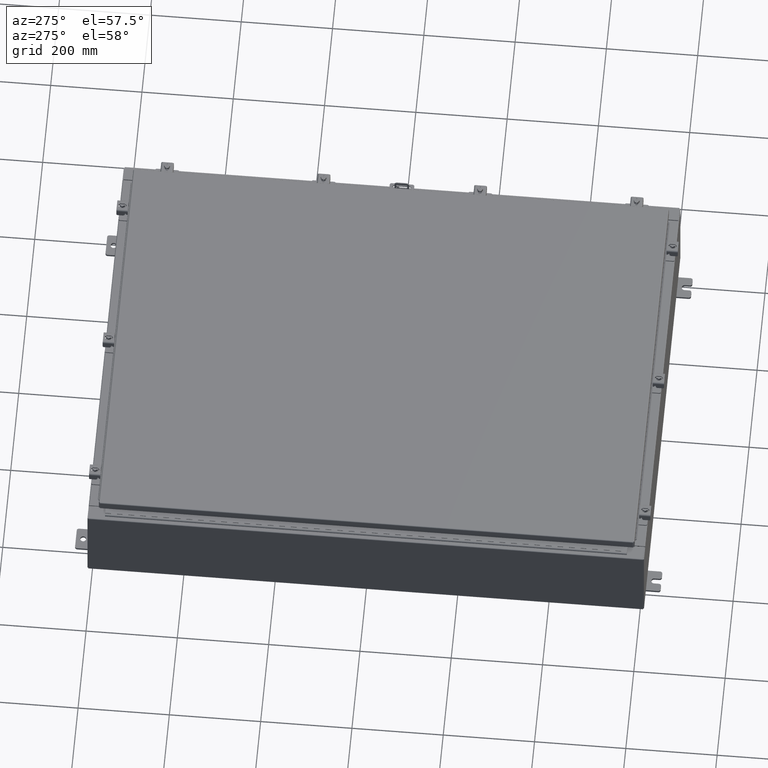
[diagram: clean part render]
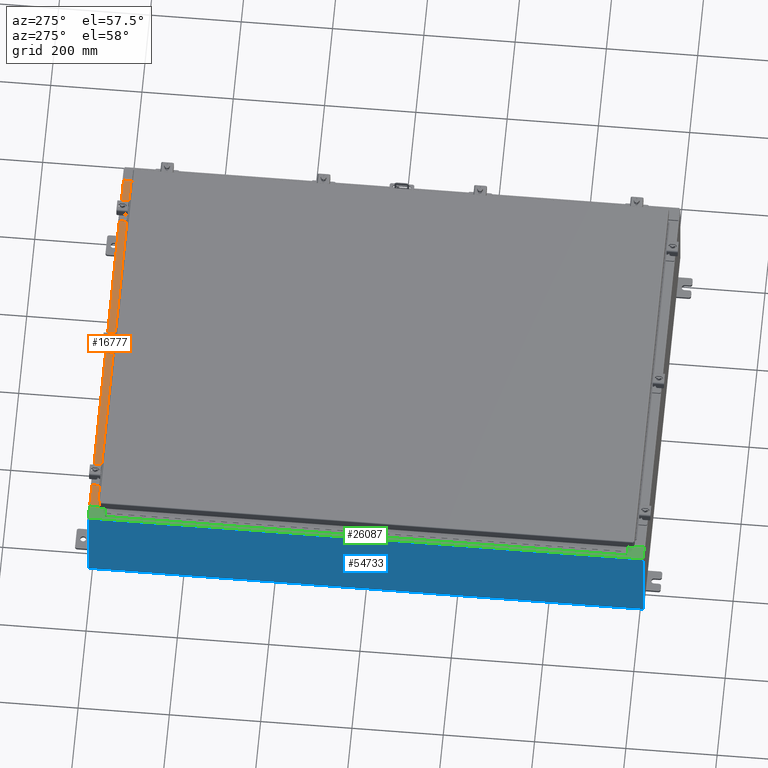
[diagram: same view with three faces highlighted in distinct colors, each labeled with its STEP entity id]
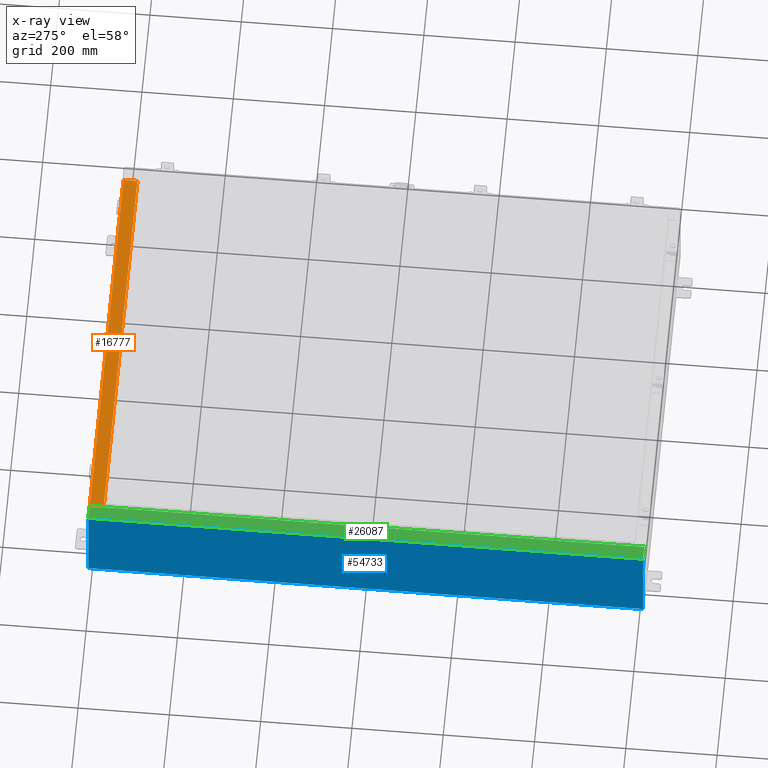
[diagram: x-ray of the same camera — body ghosted, the three highlighted faces saturated]
A machine part, auxiliary view with three faces highlighted in distinct colors.
The next image is the same camera in x-ray (body ghosted, the three faces saturated) — at least one of them is partly hidden behind the body in this view.
Their STEP definitions:

[orange] entity #16777 — the highlighted planar face has unit normal (0, 0, 1).
#750 = VECTOR ( 'NONE', #53549, 39.37007874015748100 ) ;
#1679 = CARTESIAN_POINT ( 'NONE',  ( 16.63720000000000400, -1.300299999999999800, 4.000000000000004400 ) ) ;
#4709 = ORIENTED_EDGE ( 'NONE', *, *, #47285, .F. ) ;
#7528 = DIRECTION ( 'NONE',  ( 0.0000000000000000000, -1.000000000000000000, 3.566381192773190000E-015 ) ) ;
#12136 = LINE ( 'NONE', #15018, #750 ) ;
#12582 = FACE_OUTER_BOUND ( 'NONE', #33332, .T. ) ;
#14230 = CARTESIAN_POINT ( 'NONE',  ( 16.63720000000000700, -0.08769999999999937600, 4.000000000000000900 ) ) ;
#15018 = CARTESIAN_POINT ( 'NONE',  ( -16.63719999999999600, -0.07469999999999973900, 4.000000000000000900 ) ) ;
#16777 = ADVANCED_FACE ( 'NONE', ( #12582 ), #43351, .T. ) ;
#17561 = AXIS2_PLACEMENT_3D ( 'NONE', #44253, #36709, #7528 ) ;
#20322 = CARTESIAN_POINT ( 'NONE',  ( -16.63719999999999600, -1.287299999999999200, 4.000000000000004400 ) ) ;
#22995 = LINE ( 'NONE', #1679, #33005 ) ;
#26270 = LINE ( 'NONE', #28329, #38954 ) ;
#26583 = DIRECTION ( 'NONE',  ( -1.000000000000000000, 3.284023746380717400E-017, -1.171208052571274300E-031 ) ) ;
#27525 = DIRECTION ( 'NONE',  ( -0.0000000000000000000, -1.000000000000000000, 3.566381192773190000E-015 ) ) ;
#28329 = CARTESIAN_POINT ( 'NONE',  ( 16.63720000000000700, -1.287299999999999900, 4.000000000000004400 ) ) ;
#28843 = VECTOR ( 'NONE', #26583, 39.37007874015748100 ) ;
#29557 = EDGE_CURVE ( 'NONE', #47690, #31827, #30163, .T. ) ;
#30163 = LINE ( 'NONE', #51880, #28843 ) ;
#31424 = CARTESIAN_POINT ( 'NONE',  ( 16.63720000000000400, -1.287299999999999900, 4.000000000000004400 ) ) ;
#31827 = VERTEX_POINT ( 'NONE', #41453 ) ;
#33005 = VECTOR ( 'NONE', #27525, 39.37007874015748100 ) ;
#33332 = EDGE_LOOP ( 'NONE', ( #35241, #4709, #47745, #52105 ) ) ;
#34450 = EDGE_CURVE ( 'NONE', #47690, #41054, #22995, .T. ) ;
#35241 = ORIENTED_EDGE ( 'NONE', *, *, #55204, .F. ) ;
#36709 = DIRECTION ( 'NONE',  ( 0.0000000000000000000, 3.566381192773190000E-015, 1.000000000000000000 ) ) ;
#38954 = VECTOR ( 'NONE', #53718, 39.37007874015748100 ) ;
#41054 = VERTEX_POINT ( 'NONE', #31424 ) ;
#41453 = CARTESIAN_POINT ( 'NONE',  ( -16.63719999999999600, -0.08769999999999972300, 4.000000000000000900 ) ) ;
#43351 = PLANE ( 'NONE',  #17561 ) ;
#43435 = VERTEX_POINT ( 'NONE', #20322 ) ;
#44253 = CARTESIAN_POINT ( 'NONE',  ( 0.0000000000000000000, 1.425992975200418500E-014, 4.000000000000000900 ) ) ;
#47285 = EDGE_CURVE ( 'NONE', #41054, #43435, #26270, .T. ) ;
#47690 = VERTEX_POINT ( 'NONE', #14230 ) ;
#47745 = ORIENTED_EDGE ( 'NONE', *, *, #34450, .F. ) ;
#51880 = CARTESIAN_POINT ( 'NONE',  ( -2.880088825576348200E-018, -0.08769999999999972300, 4.000000000000000900 ) ) ;
#52105 = ORIENTED_EDGE ( 'NONE', *, *, #29557, .T. ) ;
#53549 = DIRECTION ( 'NONE',  ( -0.0000000000000000000, 1.000000000000000000, -3.566381192773190000E-015 ) ) ;
#53718 = DIRECTION ( 'NONE',  ( -1.000000000000000000, 0.0000000000000000000, 0.0000000000000000000 ) ) ;
#55204 = EDGE_CURVE ( 'NONE', #43435, #31827, #12136, .T. ) ;

[blue] entity #54733 — the highlighted planar face has unit normal (1, 0, 0).
#438 = VERTEX_POINT ( 'NONE', #34873 ) ;
#1860 = ORIENTED_EDGE ( 'NONE', *, *, #10991, .F. ) ;
#8886 = VERTEX_POINT ( 'NONE', #23391 ) ;
#10991 = EDGE_CURVE ( 'NONE', #438, #30904, #34046, .T. ) ;
#11712 = CARTESIAN_POINT ( 'NONE',  ( -18.00000000000000400, 23.92529999999998900, 0.01299999999999984700 ) ) ;
#16626 = AXIS2_PLACEMENT_3D ( 'NONE', #46123, #54676, #29306 ) ;
#21932 = VECTOR ( 'NONE', #55317, 39.37007874015748100 ) ;
#22075 = ORIENTED_EDGE ( 'NONE', *, *, #45623, .T. ) ;
#22168 = VECTOR ( 'NONE', #33659, 39.37007874015748100 ) ;
#23391 = CARTESIAN_POINT ( 'NONE',  ( -18.00000000000003200, -23.92529999999998600, 7.837599999999999200 ) ) ;
#25078 = PLANE ( 'NONE',  #16626 ) ;
#25676 = LINE ( 'NONE', #52258, #48382 ) ;
#26787 = DIRECTION ( 'NONE',  ( 3.584876173029202900E-015, 0.0000000000000000000, -1.000000000000000000 ) ) ;
#29306 = DIRECTION ( 'NONE',  ( 3.584876173029202900E-015, 0.0000000000000000000, -1.000000000000000000 ) ) ;
#29762 = FACE_OUTER_BOUND ( 'NONE', #47975, .T. ) ;
#30904 = VERTEX_POINT ( 'NONE', #48255 ) ;
#32412 = DIRECTION ( 'NONE',  ( -0.0000000000000000000, 1.000000000000000000, -0.0000000000000000000 ) ) ;
#33659 = DIRECTION ( 'NONE',  ( 0.0000000000000000000, 1.000000000000000000, 0.0000000000000000000 ) ) ;
#34046 = LINE ( 'NONE', #11712, #55216 ) ;
#34873 = CARTESIAN_POINT ( 'NONE',  ( -18.00000000000000400, -23.92529999999998600, 0.01299999999999984700 ) ) ;
#34906 = LINE ( 'NONE', #42166, #22168 ) ;
#40148 = EDGE_CURVE ( 'NONE', #8886, #43042, #34906, .T. ) ;
#40797 = ORIENTED_EDGE ( 'NONE', *, *, #40148, .T. ) ;
#42166 = CARTESIAN_POINT ( 'NONE',  ( -18.00000000000003200, -23.92529999999998900, 7.837599999999999200 ) ) ;
#43042 = VERTEX_POINT ( 'NONE', #48503 ) ;
#44745 = LINE ( 'NONE', #51240, #21932 ) ;
#45456 = ORIENTED_EDGE ( 'NONE', *, *, #49792, .T. ) ;
#45623 = EDGE_CURVE ( 'NONE', #43042, #30904, #25676, .T. ) ;
#46123 = CARTESIAN_POINT ( 'NONE',  ( -18.00000000000000400, 0.0000000000000000000, -6.478858477053725400E-014 ) ) ;
#47975 = EDGE_LOOP ( 'NONE', ( #40797, #22075, #1860, #45456 ) ) ;
#48255 = CARTESIAN_POINT ( 'NONE',  ( -18.00000000000000400, 23.92529999999998900, 0.01299999999999983600 ) ) ;
#48382 = VECTOR ( 'NONE', #26787, 39.37007874015748100 ) ;
#48503 = CARTESIAN_POINT ( 'NONE',  ( -18.00000000000003200, 23.92529999999998900, 7.837599999999999200 ) ) ;
#49792 = EDGE_CURVE ( 'NONE', #438, #8886, #44745, .T. ) ;
#51240 = CARTESIAN_POINT ( 'NONE',  ( -18.00000000000000400, -23.92529999999999600, -6.478858477053725400E-014 ) ) ;
#52258 = CARTESIAN_POINT ( 'NONE',  ( -18.00000000000000400, 23.92529999999998900, -6.478858477053725400E-014 ) ) ;
#54676 = DIRECTION ( 'NONE',  ( 1.000000000000000000, 0.0000000000000000000, 3.584876173029202900E-015 ) ) ;
#54733 = ADVANCED_FACE ( 'NONE', ( #29762 ), #25078, .F. ) ;
#55216 = VECTOR ( 'NONE', #32412, 39.37007874015748100 ) ;
#55317 = DIRECTION ( 'NONE',  ( -3.584876173029202900E-015, 0.0000000000000000000, 1.000000000000000000 ) ) ;

[green] entity #26087 — the highlighted planar face has unit normal (0, 0, -1).
#299 = CARTESIAN_POINT ( 'NONE',  ( -17.91230000000003400, 23.92529999999998900, 7.925300000000000000 ) ) ;
#883 = EDGE_CURVE ( 'NONE', #51725, #3573, #54328, .T. ) ;
#2312 = LINE ( 'NONE', #53650, #2951 ) ;
#2951 = VECTOR ( 'NONE', #36652, 39.37007874015748100 ) ;
#3300 = EDGE_CURVE ( 'NONE', #38610, #42160, #2312, .T. ) ;
#3573 = VERTEX_POINT ( 'NONE', #46457 ) ;
#4128 = ORIENTED_EDGE ( 'NONE', *, *, #17910, .F. ) ;
#5061 = ORIENTED_EDGE ( 'NONE', *, *, #883, .T. ) ;
#6035 = VECTOR ( 'NONE', #46622, 39.37007874015748100 ) ;
#6568 = DIRECTION ( 'NONE',  ( -7.132762385546384700E-015, -0.0000000000000000000, 1.000000000000000000 ) ) ;
#7366 = EDGE_LOOP ( 'NONE', ( #28903, #16430, #41261, #8413, #27246, #5061, #29185, #36596, #4128, #23250, #29201, #46079 ) ) ;
#7455 = VERTEX_POINT ( 'NONE', #12362 ) ;
#8000 = CARTESIAN_POINT ( 'NONE',  ( -16.75005000000003400, -22.59374999999998200, 7.925300000000008900 ) ) ;
#8234 = LINE ( 'NONE', #51600, #29905 ) ;
#8248 = CARTESIAN_POINT ( 'NONE',  ( -16.71270000000003400, 22.59374999999999300, 7.925300000000010700 ) ) ;
#8264 = VECTOR ( 'NONE', #16440, 39.37007874015748100 ) ;
#8413 = ORIENTED_EDGE ( 'NONE', *, *, #54969, .F. ) ;
#8620 = AXIS2_PLACEMENT_3D ( 'NONE', #43315, #51786, #26299 ) ;
#8717 = DIRECTION ( 'NONE',  ( -0.0000000000000000000, -1.000000000000000000, -0.0000000000000000000 ) ) ;
#9262 = VERTEX_POINT ( 'NONE', #44360 ) ;
#9793 = AXIS2_PLACEMENT_3D ( 'NONE', #32449, #6568, #36768 ) ;
#10837 = VECTOR ( 'NONE', #13911, 39.37007874015748100 ) ;
#10971 = CARTESIAN_POINT ( 'NONE',  ( -16.69970000000003600, 23.92529999999998900, 7.925300000000008900 ) ) ;
#12362 = CARTESIAN_POINT ( 'NONE',  ( -16.75005000000003400, -22.63109999999998200, 7.925300000000008900 ) ) ;
#12835 = CARTESIAN_POINT ( 'NONE',  ( -17.91230000000003400, 23.92529999999998900, 7.925300000000000000 ) ) ;
#13515 = VERTEX_POINT ( 'NONE', #12835 ) ;
#13911 = DIRECTION ( 'NONE',  ( 1.000000000000000000, -8.681145560800197900E-014, -2.170286390200049500E-014 ) ) ;
#14154 = EDGE_CURVE ( 'NONE', #9262, #38610, #26532, .T. ) ;
#14977 = DIRECTION ( 'NONE',  ( 1.000000000000000000, 0.0000000000000000000, 0.0000000000000000000 ) ) ;
#15278 = DIRECTION ( 'NONE',  ( -7.132762385546384700E-015, -0.0000000000000000000, 1.000000000000000000 ) ) ;
#15708 = CARTESIAN_POINT ( 'NONE',  ( -16.69970000000003600, 22.63109999999999600, 7.925300000000008900 ) ) ;
#16430 = ORIENTED_EDGE ( 'NONE', *, *, #22395, .T. ) ;
#16440 = DIRECTION ( 'NONE',  ( -1.000000000000000000, -8.681145560800197900E-014, 2.170286390200049500E-014 ) ) ;
#16637 = EDGE_CURVE ( 'NONE', #42160, #36454, #40978, .T. ) ;
#16921 = CARTESIAN_POINT ( 'NONE',  ( -1.421168353416399100E-013, -23.92530000000005300, 7.925300000000127900 ) ) ;
#17910 = EDGE_CURVE ( 'NONE', #36454, #47407, #8234, .T. ) ;
#18562 = LINE ( 'NONE', #46340, #28758 ) ;
#20314 = VECTOR ( 'NONE', #43372, 39.37007874015748100 ) ;
#20517 = FACE_OUTER_BOUND ( 'NONE', #7366, .T. ) ;
#21662 = LINE ( 'NONE', #299, #20314 ) ;
#21902 = PLANE ( 'NONE',  #8620 ) ;
#22395 = EDGE_CURVE ( 'NONE', #34656, #33382, #18562, .T. ) ;
#22693 = CARTESIAN_POINT ( 'NONE',  ( -16.75005000000003400, 22.59374999999999300, 7.925300000000008900 ) ) ;
#23250 = ORIENTED_EDGE ( 'NONE', *, *, #16637, .F. ) ;
#25981 = DIRECTION ( 'NONE',  ( -1.000000000000000000, 0.0000000000000000000, 0.0000000000000000000 ) ) ;
#26087 = ADVANCED_FACE ( 'NONE', ( #20517 ), #21902, .F. ) ;
#26299 = DIRECTION ( 'NONE',  ( -1.000000000000000000, 0.0000000000000000000, -7.132762385546384700E-015 ) ) ;
#26532 = CIRCLE ( 'NONE', #32276, 0.01867499999999949400 ) ;
#27246 = ORIENTED_EDGE ( 'NONE', *, *, #53558, .T. ) ;
#28758 = VECTOR ( 'NONE', #48885, 39.37007874015748100 ) ;
#28903 = ORIENTED_EDGE ( 'NONE', *, *, #37278, .F. ) ;
#29185 = ORIENTED_EDGE ( 'NONE', *, *, #38607, .F. ) ;
#29201 = ORIENTED_EDGE ( 'NONE', *, *, #3300, .F. ) ;
#29586 = CARTESIAN_POINT ( 'NONE',  ( -5.679009539018325600E-014, 23.92529999999998900, 7.925300000000127900 ) ) ;
#29905 = VECTOR ( 'NONE', #25981, 39.37007874015748100 ) ;
#30838 = CARTESIAN_POINT ( 'NONE',  ( -16.69970000000003600, 0.0000000000000000000, 7.925300000000008900 ) ) ;
#30856 = VECTOR ( 'NONE', #8717, 39.37007874015748100 ) ;
#32276 = AXIS2_PLACEMENT_3D ( 'NONE', #47427, #15278, #14977 ) ;
#32431 = LINE ( 'NONE', #44086, #10837 ) ;
#32449 = CARTESIAN_POINT ( 'NONE',  ( -16.75005000000003400, -22.61242499999998400, 7.925300000000010700 ) ) ;
#32920 = VERTEX_POINT ( 'NONE', #41353 ) ;
#33382 = VERTEX_POINT ( 'NONE', #10971 ) ;
#34176 = EDGE_CURVE ( 'NONE', #33382, #13515, #37771, .T. ) ;
#34656 = VERTEX_POINT ( 'NONE', #15708 ) ;
#35201 = EDGE_CURVE ( 'NONE', #47407, #7455, #46347, .T. ) ;
#35880 = VECTOR ( 'NONE', #38430, 39.37007874015748100 ) ;
#36454 = VERTEX_POINT ( 'NONE', #49444 ) ;
#36596 = ORIENTED_EDGE ( 'NONE', *, *, #35201, .F. ) ;
#36652 = DIRECTION ( 'NONE',  ( 1.000000000000000000, 0.0000000000000000000, 0.0000000000000000000 ) ) ;
#36768 = DIRECTION ( 'NONE',  ( 1.000000000000000000, 0.0000000000000000000, 0.0000000000000000000 ) ) ;
#37278 = EDGE_CURVE ( 'NONE', #34656, #9262, #46689, .T. ) ;
#37771 = LINE ( 'NONE', #29586, #6035 ) ;
#38430 = DIRECTION ( 'NONE',  ( 1.000000000000000000, -3.566381192773192400E-015, 7.132762385546384700E-015 ) ) ;
#38607 = EDGE_CURVE ( 'NONE', #7455, #3573, #32431, .T. ) ;
#38610 = VERTEX_POINT ( 'NONE', #22693 ) ;
#40746 = DIRECTION ( 'NONE',  ( 0.0000000000000000000, 1.000000000000000000, 0.0000000000000000000 ) ) ;
#40978 = LINE ( 'NONE', #41410, #30856 ) ;
#41261 = ORIENTED_EDGE ( 'NONE', *, *, #34176, .T. ) ;
#41353 = CARTESIAN_POINT ( 'NONE',  ( -17.91230000000003400, -23.92529999999998600, 7.925300000000000000 ) ) ;
#41410 = CARTESIAN_POINT ( 'NONE',  ( -16.71270000000003400, 22.59374999999999300, 7.925300000000010700 ) ) ;
#42160 = VERTEX_POINT ( 'NONE', #8248 ) ;
#43315 = CARTESIAN_POINT ( 'NONE',  ( -5.679009539018325600E-014, 0.0000000000000000000, 7.925300000000127900 ) ) ;
#43372 = DIRECTION ( 'NONE',  ( -0.0000000000000000000, 1.000000000000000000, -0.0000000000000000000 ) ) ;
#44086 = CARTESIAN_POINT ( 'NONE',  ( -16.75005000000003400, -22.63109999999998200, 7.925300000000010700 ) ) ;
#44360 = CARTESIAN_POINT ( 'NONE',  ( -16.75005000000003400, 22.63109999999999300, 7.925300000000008900 ) ) ;
#44759 = CARTESIAN_POINT ( 'NONE',  ( -16.69970000000003600, -23.92529999999998600, 7.925300000000008900 ) ) ;
#46079 = ORIENTED_EDGE ( 'NONE', *, *, #14154, .F. ) ;
#46340 = CARTESIAN_POINT ( 'NONE',  ( -16.69970000000003600, 0.0000000000000000000, 7.925300000000008900 ) ) ;
#46347 = CIRCLE ( 'NONE', #9793, 0.01867499999999949400 ) ;
#46457 = CARTESIAN_POINT ( 'NONE',  ( -16.69970000000003600, -22.63109999999999600, 7.925300000000008900 ) ) ;
#46524 = CARTESIAN_POINT ( 'NONE',  ( -16.69970000000003600, 22.63109999999999600, 7.925300000000009800 ) ) ;
#46622 = DIRECTION ( 'NONE',  ( -1.000000000000000000, 0.0000000000000000000, -7.132762385546384700E-015 ) ) ;
#46689 = LINE ( 'NONE', #46524, #8264 ) ;
#47407 = VERTEX_POINT ( 'NONE', #8000 ) ;
#47427 = CARTESIAN_POINT ( 'NONE',  ( -16.75005000000003400, 22.61242499999999100, 7.925300000000010700 ) ) ;
#48643 = LINE ( 'NONE', #16921, #35880 ) ;
#48885 = DIRECTION ( 'NONE',  ( 0.0000000000000000000, 1.000000000000000000, 0.0000000000000000000 ) ) ;
#49444 = CARTESIAN_POINT ( 'NONE',  ( -16.71270000000003400, -22.59374999999998200, 7.925300000000010700 ) ) ;
#51600 = CARTESIAN_POINT ( 'NONE',  ( -16.71270000000003400, -22.59374999999998200, 7.925300000000010700 ) ) ;
#51725 = VERTEX_POINT ( 'NONE', #44759 ) ;
#51786 = DIRECTION ( 'NONE',  ( 7.132762385546384700E-015, 0.0000000000000000000, -1.000000000000000000 ) ) ;
#53558 = EDGE_CURVE ( 'NONE', #32920, #51725, #48643, .T. ) ;
#53650 = CARTESIAN_POINT ( 'NONE',  ( -16.75005000000003400, 22.59374999999999300, 7.925300000000010700 ) ) ;
#54174 = VECTOR ( 'NONE', #40746, 39.37007874015748100 ) ;
#54328 = LINE ( 'NONE', #30838, #54174 ) ;
#54969 = EDGE_CURVE ( 'NONE', #32920, #13515, #21662, .T. ) ;